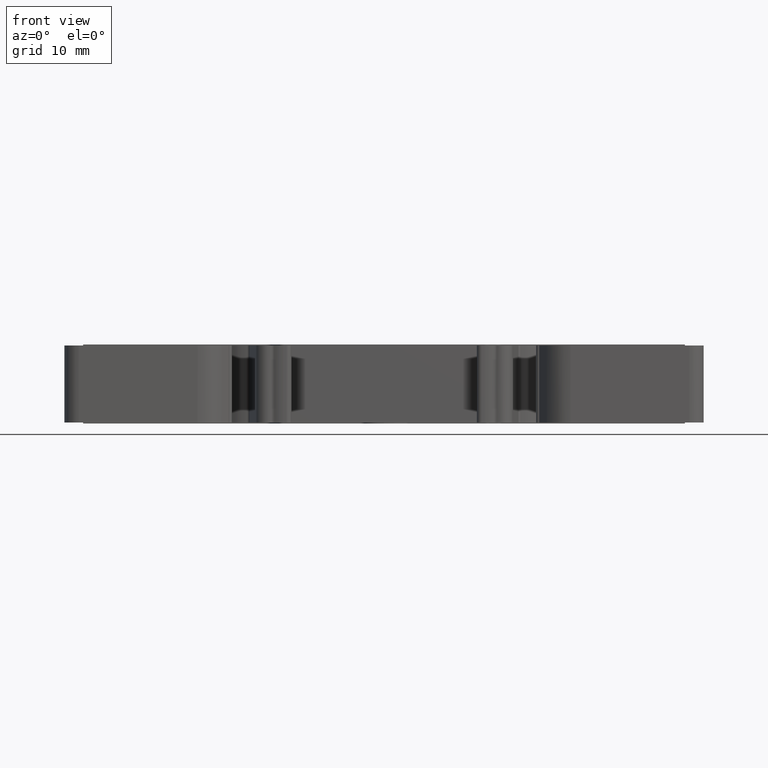
[diagram: clean part render]
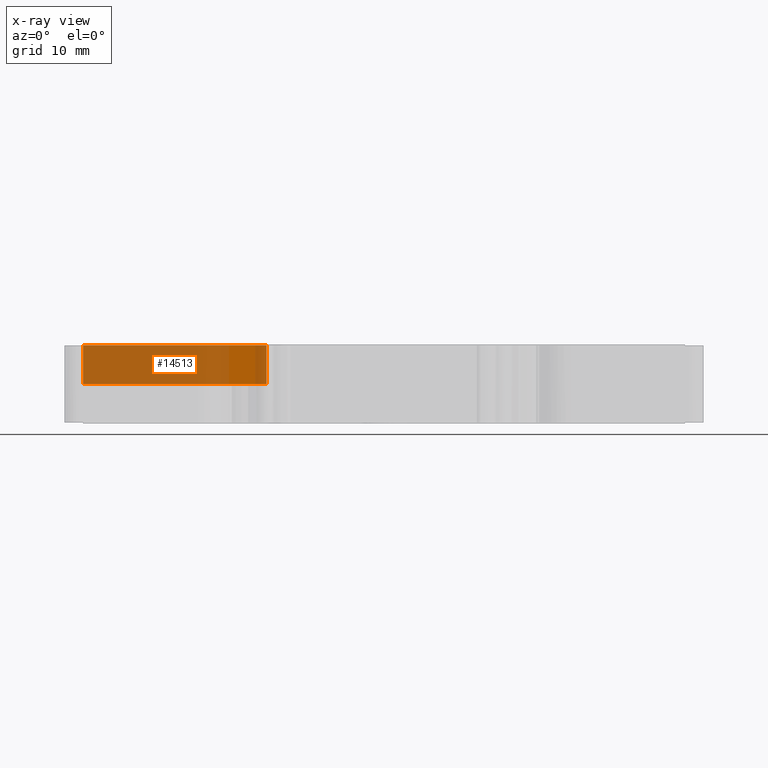
[diagram: x-ray — body ghosted, one internal face saturated and labeled with its STEP entity id]
A machine part, front view, then the same camera in x-ray: the body is ghosted and one INTERNAL B-rep face — a face not visible from any outside direction — is saturated and labeled: STEP entity #14513.
In plain terms, the highlighted planar face has unit normal (0, -1, 0).
Its self-contained STEP definition (entity closure, byte-faithful):
#2690 = EDGE_CURVE ( 'NONE', #11972, #13619, #8694, .T. ) ;
#2726 = EDGE_CURVE ( 'NONE', #14327, #13619, #7808, .T. ) ;
#3364 = EDGE_CURVE ( 'NONE', #11972, #11938, #5819, .T. ) ;
#3476 = EDGE_CURVE ( 'NONE', #11938, #14327, #6311, .T. ) ;
#4329 = PLANE ( 'NONE',  #10183 ) ;
#4369 = FACE_OUTER_BOUND ( 'NONE', #16929, .T. ) ;
#4390 = DIRECTION ( 'NONE',  ( 0.9999999999999998900, 1.228035773147849800E-008, 0.0000000000000000000 ) ) ;
#4392 = CARTESIAN_POINT ( 'NONE',  ( 179.3232696723940800, 7.244798153061969600, -12.60000000000000000 ) ) ;
#4419 = DIRECTION ( 'NONE',  ( 1.228035773147850000E-008, -1.000000000000000000, 0.0000000000000000000 ) ) ;
#4669 = CARTESIAN_POINT ( 'NONE',  ( 148.0732611066372000, 7.244797769300668700, -12.60000000000000000 ) ) ;
#5819 = LINE ( 'NONE', #5856, #6811 ) ;
#5827 = DIRECTION ( 'NONE',  ( -0.0000000000000000000, 0.0000000000000000000, 1.000000000000000000 ) ) ;
#5856 = CARTESIAN_POINT ( 'NONE',  ( 167.1261965482675000, 7.244798003277548300, -12.60000000000000000 ) ) ;
#6311 = B_SPLINE_CURVE_WITH_KNOTS ( 'NONE', 3,
 ( #15317, #15357, #15333, #15354 ),
 .UNSPECIFIED., .F., .F.,
 ( 4, 4 ),
 ( 0.0000000000000000000, 1.000000000000000000 ),
 .UNSPECIFIED. ) ;
#6811 = VECTOR ( 'NONE', #5827, 1000.000000000000000 ) ;
#7268 = VECTOR ( 'NONE', #8722, 1000.000000000000000 ) ;
#7302 = VECTOR ( 'NONE', #7792, 1000.000000000000000 ) ;
#7792 = DIRECTION ( 'NONE',  ( 0.0000000000000000000, 0.0000000000000000000, -1.000000000000000000 ) ) ;
#7808 = LINE ( 'NONE', #7809, #7302 ) ;
#7809 = CARTESIAN_POINT ( 'NONE',  ( 148.0732611066372300, 7.244797769300653600, -12.60000000000000000 ) ) ;
#8694 = LINE ( 'NONE', #8697, #7268 ) ;
#8697 = CARTESIAN_POINT ( 'NONE',  ( 209.0733057929664900, 7.244798003277551900, -16.60000000000000100 ) ) ;
#8722 = DIRECTION ( 'NONE',  ( -1.000000000000000000, 0.0000000000000000000, -0.0000000000000000000 ) ) ;
#9991 = ORIENTED_EDGE ( 'NONE', *, *, #3364, .F. ) ;
#9999 = ORIENTED_EDGE ( 'NONE', *, *, #2690, .T. ) ;
#10024 = ORIENTED_EDGE ( 'NONE', *, *, #3476, .F. ) ;
#10068 = ORIENTED_EDGE ( 'NONE', *, *, #2726, .F. ) ;
#10183 = AXIS2_PLACEMENT_3D ( 'NONE', #4392, #4419, #4390 ) ;
#11938 = VERTEX_POINT ( 'NONE', #17590 ) ;
#11972 = VERTEX_POINT ( 'NONE', #17571 ) ;
#13619 = VERTEX_POINT ( 'NONE', #15740 ) ;
#14327 = VERTEX_POINT ( 'NONE', #4669 ) ;
#14513 = ADVANCED_FACE ( 'NONE', ( #4369 ), #4329, .F. ) ;
#15317 = CARTESIAN_POINT ( 'NONE',  ( 167.1261965482675000, 7.244798003277548300, -12.60000000000000000 ) ) ;
#15333 = CARTESIAN_POINT ( 'NONE',  ( 154.4242395871806400, 7.244797847292966600, -12.60000000000000000 ) ) ;
#15354 = CARTESIAN_POINT ( 'NONE',  ( 148.0732611066372000, 7.244797769300668700, -12.60000000000000000 ) ) ;
#15357 = CARTESIAN_POINT ( 'NONE',  ( 160.7752180677240700, 7.244797925285258300, -12.60000000000000000 ) ) ;
#15740 = CARTESIAN_POINT ( 'NONE',  ( 148.0732610970032700, 7.244797885983611100, -16.60000000000000500 ) ) ;
#16929 = EDGE_LOOP ( 'NONE', ( #10024, #9991, #9999, #10068 ) ) ;
#17571 = CARTESIAN_POINT ( 'NONE',  ( 167.1261965482675000, 7.244798003277551000, -16.60000000000000100 ) ) ;
#17590 = CARTESIAN_POINT ( 'NONE',  ( 167.1261965482675000, 7.244798003277548300, -12.60000000000000000 ) ) ;